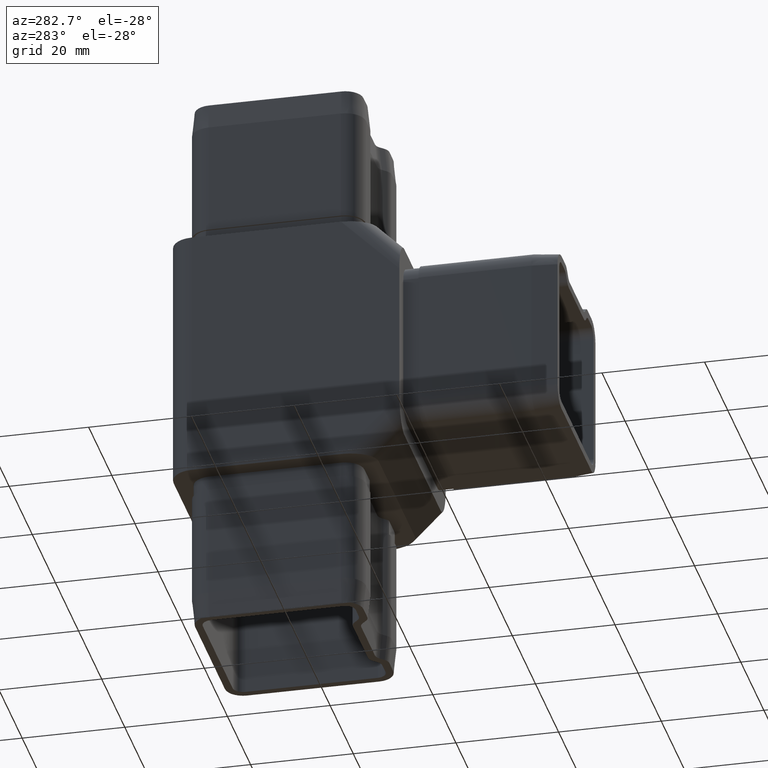
[diagram: clean part render]
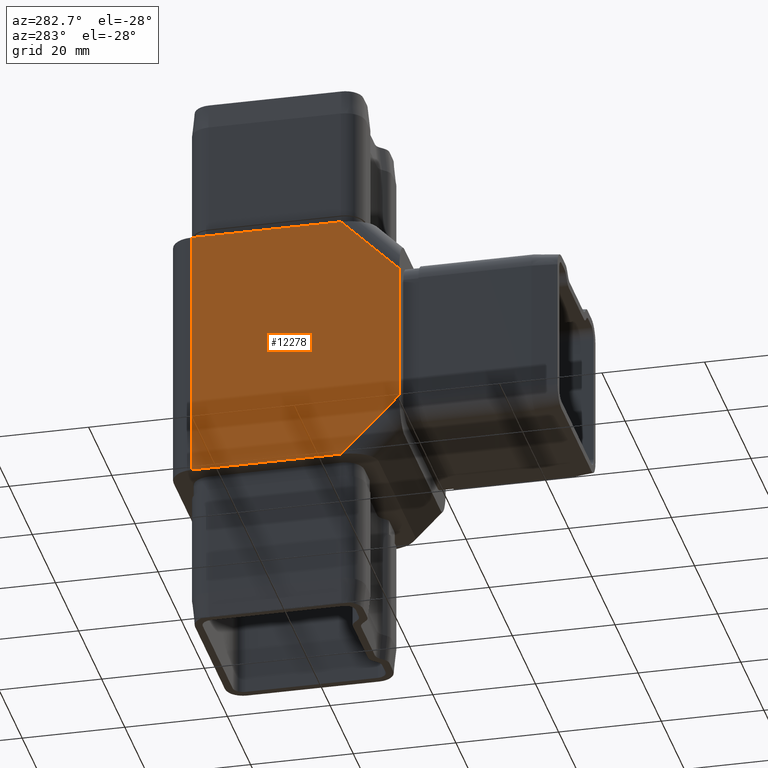
[diagram: same view with one face highlighted and labeled with its STEP entity id]
A machine part, auxiliary view. The second image highlights one B-rep face of the part: STEP entity #12278.
In plain terms, the highlighted planar face has unit normal (1, 0, -0).
Its self-contained STEP definition (entity closure, byte-faithful):
#873 = VERTEX_POINT ( 'NONE', #8057 ) ;
#1138 = DIRECTION ( 'NONE',  ( 0.0000000000000000000, 0.0000000000000000000, -1.000000000000000000 ) ) ;
#1695 = CARTESIAN_POINT ( 'NONE',  ( -19.99999999999999600, -14.31801948466052800, 21.81801948466055000 ) ) ;
#1869 = VECTOR ( 'NONE', #13931, 1000.000000000000000 ) ;
#2363 = ORIENTED_EDGE ( 'NONE', *, *, #10475, .T. ) ;
#2378 = CARTESIAN_POINT ( 'NONE',  ( -19.99999999999999600, -22.50000000000000000, 13.63603896932104200 ) ) ;
#2604 = LINE ( 'NONE', #20057, #1869 ) ;
#2727 = VECTOR ( 'NONE', #12148, 1000.000000000000000 ) ;
#3923 = EDGE_CURVE ( 'NONE', #13678, #18329, #20688, .T. ) ;
#4608 = ORIENTED_EDGE ( 'NONE', *, *, #5727, .T. ) ;
#4918 = VECTOR ( 'NONE', #6420, 1000.000000000000100 ) ;
#5380 = DIRECTION ( 'NONE',  ( 1.000000000000000000, 1.541976423090495400E-016, -0.0000000000000000000 ) ) ;
#5469 = VECTOR ( 'NONE', #1138, 1000.000000000000000 ) ;
#5727 = EDGE_CURVE ( 'NONE', #13678, #16542, #14146, .T. ) ;
#6420 = DIRECTION ( 'NONE',  ( -1.090341985197063700E-016, 0.7071067811865460200, 0.7071067811865489100 ) ) ;
#6676 = ORIENTED_EDGE ( 'NONE', *, *, #3923, .F. ) ;
#6969 = FACE_OUTER_BOUND ( 'NONE', #8669, .T. ) ;
#7820 = DIRECTION ( 'NONE',  ( -0.0000000000000000000, -0.0000000000000000000, -1.000000000000000000 ) ) ;
#8057 = CARTESIAN_POINT ( 'NONE',  ( -20.00000000000000000, -11.13603896932103300, -25.00000000000000000 ) ) ;
#8669 = EDGE_LOOP ( 'NONE', ( #2363, #19046, #14983, #18381, #6676, #4608 ) ) ;
#10147 = LINE ( 'NONE', #1695, #4918 ) ;
#10328 = VERTEX_POINT ( 'NONE', #19721 ) ;
#10475 = EDGE_CURVE ( 'NONE', #16542, #873, #2604, .T. ) ;
#11081 = DIRECTION ( 'NONE',  ( 1.090341985197068400E-016, -0.7071067811865489100, 0.7071067811865460200 ) ) ;
#11733 = PLANE ( 'NONE',  #17160 ) ;
#11866 = VECTOR ( 'NONE', #7820, 1000.000000000000000 ) ;
#12148 = DIRECTION ( 'NONE',  ( 1.541976423090495400E-016, -1.000000000000000000, 0.0000000000000000000 ) ) ;
#12278 = ADVANCED_FACE ( 'NONE', ( #6969 ), #11733, .F. ) ;
#13197 = CARTESIAN_POINT ( 'NONE',  ( -20.00000000000000400, 18.00000000000000400, -25.00000000000000000 ) ) ;
#13518 = CARTESIAN_POINT ( 'NONE',  ( -20.00000000000000400, 22.50000000000000000, 25.00000000000000000 ) ) ;
#13562 = DIRECTION ( 'NONE',  ( -1.541976423090495400E-016, 1.000000000000000000, 0.0000000000000000000 ) ) ;
#13678 = VERTEX_POINT ( 'NONE', #19259 ) ;
#13931 = DIRECTION ( 'NONE',  ( 1.541976423090495400E-016, -1.000000000000000000, 0.0000000000000000000 ) ) ;
#14040 = CARTESIAN_POINT ( 'NONE',  ( -19.99999999999999600, -22.50000000000000000, 25.00000000000000000 ) ) ;
#14146 = LINE ( 'NONE', #16972, #5469 ) ;
#14412 = LINE ( 'NONE', #20632, #17677 ) ;
#14983 = ORIENTED_EDGE ( 'NONE', *, *, #19536, .F. ) ;
#16542 = VERTEX_POINT ( 'NONE', #13197 ) ;
#16686 = CARTESIAN_POINT ( 'NONE',  ( -20.00000000000000400, 22.50000000000000000, 25.00000000000000000 ) ) ;
#16972 = CARTESIAN_POINT ( 'NONE',  ( -20.00000000000000400, 18.00000000000000000, 25.00000000000000000 ) ) ;
#17160 = AXIS2_PLACEMENT_3D ( 'NONE', #16686, #5380, #13562 ) ;
#17386 = EDGE_CURVE ( 'NONE', #20436, #18329, #10147, .T. ) ;
#17677 = VECTOR ( 'NONE', #11081, 1000.000000000000100 ) ;
#18329 = VERTEX_POINT ( 'NONE', #18652 ) ;
#18381 = ORIENTED_EDGE ( 'NONE', *, *, #17386, .T. ) ;
#18652 = CARTESIAN_POINT ( 'NONE',  ( -20.00000000000000000, -11.13603896932107600, 25.00000000000000000 ) ) ;
#18876 = LINE ( 'NONE', #14040, #11866 ) ;
#19046 = ORIENTED_EDGE ( 'NONE', *, *, #19941, .T. ) ;
#19259 = CARTESIAN_POINT ( 'NONE',  ( -20.00000000000000400, 18.00000000000000400, 25.00000000000000000 ) ) ;
#19536 = EDGE_CURVE ( 'NONE', #20436, #10328, #18876, .T. ) ;
#19721 = CARTESIAN_POINT ( 'NONE',  ( -19.99999999999999600, -22.50000000000000000, -13.63603896932109900 ) ) ;
#19941 = EDGE_CURVE ( 'NONE', #873, #10328, #14412, .T. ) ;
#20057 = CARTESIAN_POINT ( 'NONE',  ( -20.00000000000000400, 22.50000000000000000, -25.00000000000000000 ) ) ;
#20436 = VERTEX_POINT ( 'NONE', #2378 ) ;
#20632 = CARTESIAN_POINT ( 'NONE',  ( -19.99999999999999600, -19.31801948466054200, -16.81801948466054200 ) ) ;
#20688 = LINE ( 'NONE', #13518, #2727 ) ;